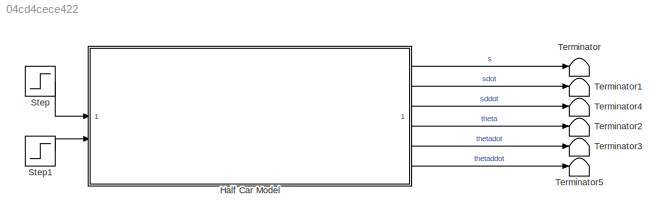
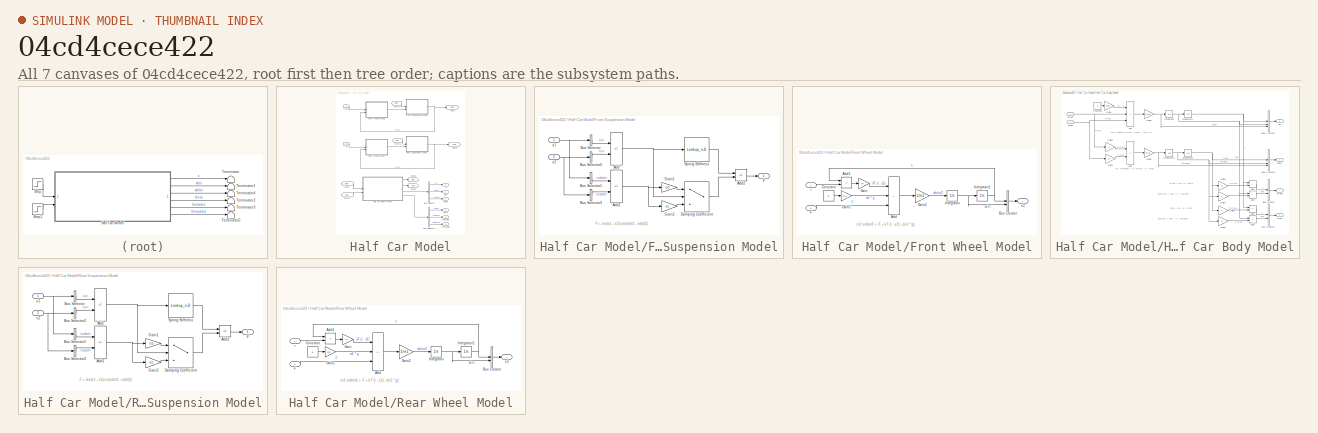
[diagram: thumbnail index - all 7 canvases of the model, root first then tree order]
MODEL slx_04cd4cece422
KIND model
CONFIG AbsTol = auto
CONFIG EnableMultiTasking = off
CONFIG FixedStep = auto
CONFIG MaxStep = auto
CONFIG MinStep = auto
CONFIG RelTol = 1e-3
CONFIG SampleTimeConstraint = Unconstrained
CONFIG SolverName = VariableStepAuto
CONFIG StartTime = 0.0
CONFIG StopTime = 20
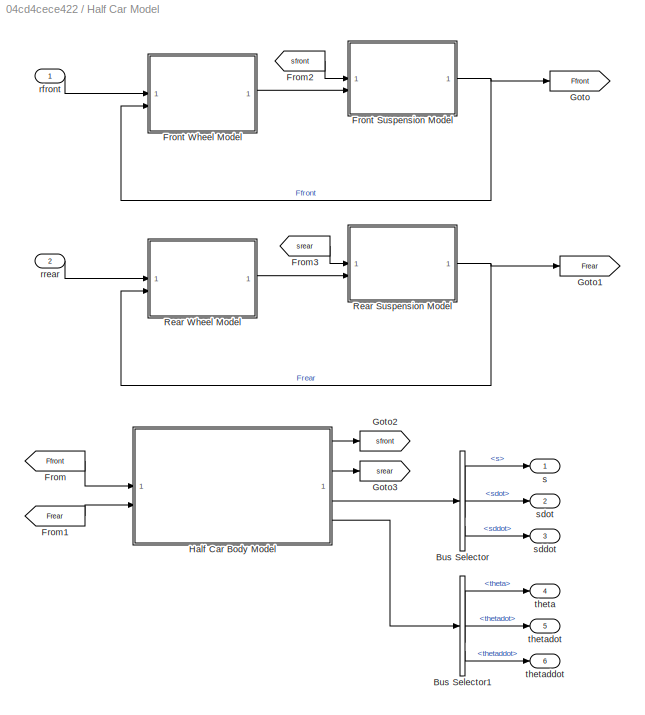
BLOCK [SubSystem] Half Car Model
BLOCK [BusSelector] Half Car Model/Bus Selector
  OutputSignals = s,sdot,sddot
BLOCK [BusSelector] Half Car Model/Bus Selector1
  OutputSignals = theta,thetadot,thetaddot
BLOCK [From] Half Car Model/From
  GotoTag = Ffront
BLOCK [From] Half Car Model/From1
  GotoTag = Frear
BLOCK [From] Half Car Model/From2
  GotoTag = sfront
BLOCK [From] Half Car Model/From3
  GotoTag = srear
BLOCK [SubSystem] Half Car Model/Front Suspension Model
  AttributesFormatString = ks = %<ks>\nk2 = %<k2>\nx0 = %<x0>\nce = %<ce>\ncc = %<cc>
BLOCK [Sum] Half Car Model/Front Suspension Model/Add
  IconShape = rectangular
  Inputs = +-
BLOCK [Sum] Half Car Model/Front Suspension Model/Add1
  IconShape = rectangular
  Inputs = +-
BLOCK [Sum] Half Car Model/Front Suspension Model/Add2
  IconShape = rectangular
  Inputs = --
BLOCK [BusSelector] Half Car Model/Front Suspension Model/Bus Selector
  OutputSignals = s
BLOCK [BusSelector] Half Car Model/Front Suspension Model/Bus Selector1
  OutputSignals = sdot
BLOCK [BusSelector] Half Car Model/Front Suspension Model/Bus Selector2
  OutputSignals = s
BLOCK [BusSelector] Half Car Model/Front Suspension Model/Bus Selector3
  OutputSignals = sdot
BLOCK [Switch] Half Car Model/Front Suspension Model/Damping Coefficient
  Criteria = u2 > Threshold
  InputSameDT = off
  SaturateOnIntegerOverflow = off
BLOCK [Outport] Half Car Model/Front Suspension Model/F
BLOCK [Gain] Half Car Model/Front Suspension Model/Gain1
  Gain = ce
BLOCK [Gain] Half Car Model/Front Suspension Model/Gain2
  Gain = cc
BLOCK [Lookup_n-D] Half Car Model/Front Suspension Model/Spring Stiffness
  BreakpointsForDimension1 = [-2*x0, -x0, x0, 2*x0]
  InputPortMap = u0
  InternalRulePriority = Speed
  NumberOfTableDimensions = 1
  RndMeth = Simplest
  Table = [-(ks+k2)*x0, -ks*x0, ks*x0, (ks+k2)*x0]
BLOCK [Inport] Half Car Model/Front Suspension Model/s1
BLOCK [Inport] Half Car Model/Front Suspension Model/s2
  Port = 2
BLOCK [SubSystem] Half Car Model/Front Wheel Model
  AttributesFormatString = g = %<g>\nkT = %<kT>\nm2 = %<m2>
BLOCK [Sum] Half Car Model/Front Wheel Model/Add
  IconShape = rectangular
  Inputs = +--
BLOCK [Sum] Half Car Model/Front Wheel Model/Add1
  IconShape = rectangular
  Inputs = -+
BLOCK [BusCreator] Half Car Model/Front Wheel Model/Bus Creator
  DisplayOption = bar
  InheritFromInputs = on
  Inputs = 2
BLOCK [Constant] Half Car Model/Front Wheel Model/Constant
  Value = g
BLOCK [Inport] Half Car Model/Front Wheel Model/F
  Port = 2
BLOCK [Gain] Half Car Model/Front Wheel Model/Gain
  Gain = kT
BLOCK [Gain] Half Car Model/Front Wheel Model/Gain1
  Gain = m2
BLOCK [Gain] Half Car Model/Front Wheel Model/Gain2
  Gain = 1/m2
BLOCK [Integrator] Half Car Model/Front Wheel Model/Integrator
BLOCK [Integrator] Half Car Model/Front Wheel Model/Integrator1
BLOCK [Inport] Half Car Model/Front Wheel Model/r
BLOCK [Outport] Half Car Model/Front Wheel Model/s2
BLOCK [Goto] Half Car Model/Goto
  GotoTag = Ffront
BLOCK [Goto] Half Car Model/Goto1
  GotoTag = Frear
BLOCK [Goto] Half Car Model/Goto2
  GotoTag = sfront
BLOCK [Goto] Half Car Model/Goto3
  GotoTag = srear
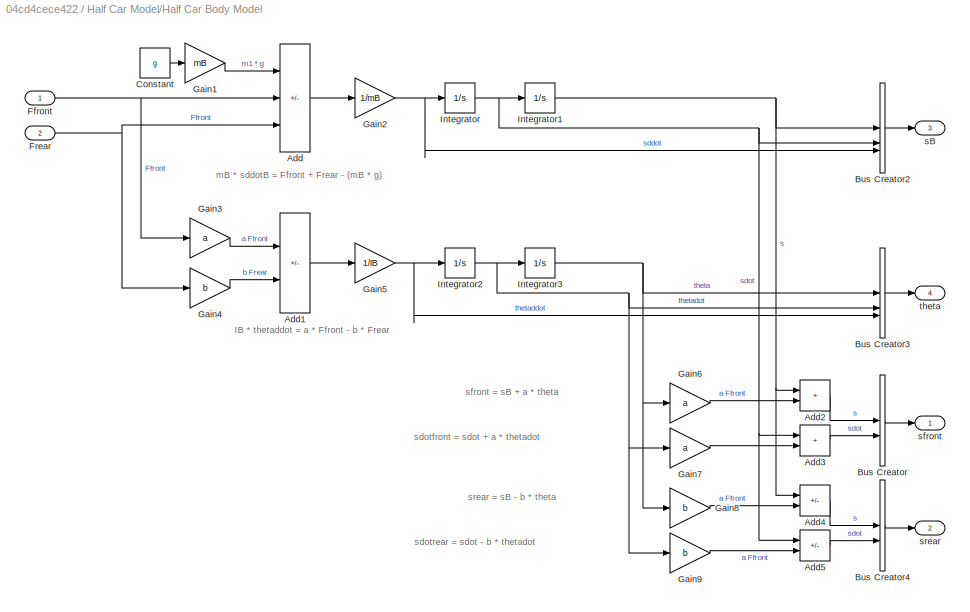
BLOCK [SubSystem] Half Car Model/Half Car Body Model
  AttributesFormatString = mB = %<mB>\nIB = %<IB>\ng = %<g>\na = %<a>\nb = %<b>
BLOCK [Sum] Half Car Model/Half Car Body Model/Add
  IconShape = rectangular
  Inputs = -++
BLOCK [Sum] Half Car Model/Half Car Body Model/Add1
  IconShape = rectangular
  Inputs = +-
BLOCK [Sum] Half Car Model/Half Car Body Model/Add2
  IconShape = rectangular
BLOCK [Sum] Half Car Model/Half Car Body Model/Add3
  IconShape = rectangular
BLOCK [Sum] Half Car Model/Half Car Body Model/Add4
  IconShape = rectangular
  Inputs = +-
BLOCK [Sum] Half Car Model/Half Car Body Model/Add5
  IconShape = rectangular
  Inputs = +-
BLOCK [BusCreator] Half Car Model/Half Car Body Model/Bus Creator
  DisplayOption = bar
  InheritFromInputs = on
  Inputs = 2
BLOCK [BusCreator] Half Car Model/Half Car Body Model/Bus Creator2
  DisplayOption = bar
  InheritFromInputs = on
  Inputs = 3
BLOCK [BusCreator] Half Car Model/Half Car Body Model/Bus Creator3
  DisplayOption = bar
  InheritFromInputs = on
  Inputs = 3
BLOCK [BusCreator] Half Car Model/Half Car Body Model/Bus Creator4
  DisplayOption = bar
  InheritFromInputs = on
  Inputs = 2
BLOCK [Constant] Half Car Model/Half Car Body Model/Constant
  Value = g
BLOCK [Inport] Half Car Model/Half Car Body Model/Ffront
BLOCK [Inport] Half Car Model/Half Car Body Model/Frear
  Port = 2
BLOCK [Gain] Half Car Model/Half Car Body Model/Gain1
  Gain = mB
BLOCK [Gain] Half Car Model/Half Car Body Model/Gain2
  Gain = 1/mB
BLOCK [Gain] Half Car Model/Half Car Body Model/Gain3
  Gain = a
BLOCK [Gain] Half Car Model/Half Car Body Model/Gain4
  Gain = b
BLOCK [Gain] Half Car Model/Half Car Body Model/Gain5
  Gain = 1/IB
BLOCK [Gain] Half Car Model/Half Car Body Model/Gain6
  Gain = a
BLOCK [Gain] Half Car Model/Half Car Body Model/Gain7
  Gain = a
BLOCK [Gain] Half Car Model/Half Car Body Model/Gain8
  Gain = b
BLOCK [Gain] Half Car Model/Half Car Body Model/Gain9
  Gain = b
BLOCK [Integrator] Half Car Model/Half Car Body Model/Integrator
BLOCK [Integrator] Half Car Model/Half Car Body Model/Integrator1
BLOCK [Integrator] Half Car Model/Half Car Body Model/Integrator2
BLOCK [Integrator] Half Car Model/Half Car Body Model/Integrator3
BLOCK [Outport] Half Car Model/Half Car Body Model/sB
  Port = 3
BLOCK [Outport] Half Car Model/Half Car Body Model/sfront
BLOCK [Outport] Half Car Model/Half Car Body Model/srear
  Port = 2
BLOCK [Outport] Half Car Model/Half Car Body Model/theta
  Port = 4
BLOCK [SubSystem] Half Car Model/Rear Suspension Model
  AttributesFormatString = ks = %<ks>\nk2 = %<k2>\nx0 = %<x0>\nce = %<ce>\ncc = %<cc>
BLOCK [Sum] Half Car Model/Rear Suspension Model/Add
  IconShape = rectangular
  Inputs = +-
BLOCK [Sum] Half Car Model/Rear Suspension Model/Add1
  IconShape = rectangular
  Inputs = +-
BLOCK [Sum] Half Car Model/Rear Suspension Model/Add2
  IconShape = rectangular
  Inputs = --
BLOCK [BusSelector] Half Car Model/Rear Suspension Model/Bus Selector
  OutputSignals = s
BLOCK [BusSelector] Half Car Model/Rear Suspension Model/Bus Selector1
  OutputSignals = sdot
BLOCK [BusSelector] Half Car Model/Rear Suspension Model/Bus Selector2
  OutputSignals = s
BLOCK [BusSelector] Half Car Model/Rear Suspension Model/Bus Selector3
  OutputSignals = sdot
BLOCK [Switch] Half Car Model/Rear Suspension Model/Damping Coefficient
  Criteria = u2 > Threshold
  InputSameDT = off
  SaturateOnIntegerOverflow = off
BLOCK [Outport] Half Car Model/Rear Suspension Model/F
BLOCK [Gain] Half Car Model/Rear Suspension Model/Gain1
  Gain = ce
BLOCK [Gain] Half Car Model/Rear Suspension Model/Gain2
  Gain = cc
BLOCK [Lookup_n-D] Half Car Model/Rear Suspension Model/Spring Stiffness
  BreakpointsForDimension1 = [-2*x0, -x0, x0, 2*x0]
  InputPortMap = u0
  InternalRulePriority = Speed
  NumberOfTableDimensions = 1
  RndMeth = Simplest
  Table = [-(ks+k2)*x0, -ks*x0, ks*x0, (ks+k2)*x0]
BLOCK [Inport] Half Car Model/Rear Suspension Model/s1
BLOCK [Inport] Half Car Model/Rear Suspension Model/s2
  Port = 2
BLOCK [SubSystem] Half Car Model/Rear Wheel Model
  AttributesFormatString = g = %<g>\nkT = %<kT>\nm2 = %<m2>
BLOCK [Sum] Half Car Model/Rear Wheel Model/Add
  IconShape = rectangular
  Inputs = +--
BLOCK [Sum] Half Car Model/Rear Wheel Model/Add1
  IconShape = rectangular
  Inputs = -+
BLOCK [BusCreator] Half Car Model/Rear Wheel Model/Bus Creator
  DisplayOption = bar
  InheritFromInputs = on
  Inputs = 2
BLOCK [Constant] Half Car Model/Rear Wheel Model/Constant
  Value = g
BLOCK [Inport] Half Car Model/Rear Wheel Model/F
  Port = 2
BLOCK [Gain] Half Car Model/Rear Wheel Model/Gain
  Gain = kT
BLOCK [Gain] Half Car Model/Rear Wheel Model/Gain1
  Gain = m2
BLOCK [Gain] Half Car Model/Rear Wheel Model/Gain2
  Gain = 1/m2
BLOCK [Integrator] Half Car Model/Rear Wheel Model/Integrator
BLOCK [Integrator] Half Car Model/Rear Wheel Model/Integrator1
BLOCK [Inport] Half Car Model/Rear Wheel Model/r
BLOCK [Outport] Half Car Model/Rear Wheel Model/s2
BLOCK [Inport] Half Car Model/rfront
BLOCK [Inport] Half Car Model/rrear
  Port = 2
BLOCK [Outport] Half Car Model/s
BLOCK [Outport] Half Car Model/sddot
  Port = 3
BLOCK [Outport] Half Car Model/sdot
  Port = 2
BLOCK [Outport] Half Car Model/theta
  Port = 4
BLOCK [Outport] Half Car Model/thetaddot
  Port = 6
BLOCK [Outport] Half Car Model/thetadot
  Port = 5
BLOCK [Step] Step
  After = 0.05
  SampleTime = 0
  Time = 10
BLOCK [Step] Step1
  After = 0.05
  SampleTime = 0
  Time = 15
BLOCK [Terminator] Terminator
BLOCK [Terminator] Terminator1
BLOCK [Terminator] Terminator2
BLOCK [Terminator] Terminator3
BLOCK [Terminator] Terminator4
BLOCK [Terminator] Terminator5
ANNOTATION Half Car Model/Front Suspension Model: F = -ks(s1 - s2)-cs(sdot1 - sdot2)
ANNOTATION Half Car Model/Front Wheel Model: m2 sddot2 = -F + kT (r - s2) - (m2 * g)
ANNOTATION Half Car Model/Half Car Body Model: IB * thetaddot = a * Ffront - b * Frear
ANNOTATION Half Car Model/Half Car Body Model: mB * sddotB = Ffront + Frear - (mB * g)
ANNOTATION Half Car Model/Half Car Body Model: sdotfront = sdot + a * thetadot
ANNOTATION Half Car Model/Half Car Body Model: sdotrear = sdot - b * thetadot
ANNOTATION Half Car Model/Half Car Body Model: sfront = sB + a * theta
ANNOTATION Half Car Model/Half Car Body Model: srear = sB - b * theta
ANNOTATION Half Car Model/Rear Suspension Model: F = -ks(s1 - s2)-cs(sdot1 - sdot2)
ANNOTATION Half Car Model/Rear Wheel Model: m2 sddot2 = -F + kT (r - s2) - (m2 * g)
LINE Half Car Model/Bus Selector1:1 -> Half Car Model/theta:1
LINE Half Car Model/Bus Selector1:2 -> Half Car Model/thetadot:1
LINE Half Car Model/Bus Selector1:3 -> Half Car Model/thetaddot:1
LINE Half Car Model/Bus Selector:1 -> Half Car Model/s:1
LINE Half Car Model/Bus Selector:2 -> Half Car Model/sdot:1
LINE Half Car Model/Bus Selector:3 -> Half Car Model/sddot:1
LINE Half Car Model/From1:1 -> Half Car Model/Half Car Body Model:2
LINE Half Car Model/From2:1 -> Half Car Model/Front Suspension Model:1
LINE Half Car Model/From3:1 -> Half Car Model/Rear Suspension Model:1
LINE Half Car Model/From:1 -> Half Car Model/Half Car Body Model:1
NET Half Car Model/Front Suspension Model/Add1:1 -> Half Car Model/Front Suspension Model/Gain1:1, Half Car Model/Front Suspension Model/Gain2:1
LINE Half Car Model/Front Suspension Model/Add2:1 -> Half Car Model/Front Suspension Model/F:1
NET Half Car Model/Front Suspension Model/Add:1 -> Half Car Model/Front Suspension Model/Damping Coefficient:2, Half Car Model/Front Suspension Model/Spring Stiffness:1
LINE Half Car Model/Front Suspension Model/Bus Selector1:1 -> Half Car Model/Front Suspension Model/Add1:1
LINE Half Car Model/Front Suspension Model/Bus Selector2:1 -> Half Car Model/Front Suspension Model/Add:2
LINE Half Car Model/Front Suspension Model/Bus Selector3:1 -> Half Car Model/Front Suspension Model/Add1:2
LINE Half Car Model/Front Suspension Model/Bus Selector:1 -> Half Car Model/Front Suspension Model/Add:1
LINE Half Car Model/Front Suspension Model/Damping Coefficient:1 -> Half Car Model/Front Suspension Model/Add2:2
LINE Half Car Model/Front Suspension Model/Gain1:1 -> Half Car Model/Front Suspension Model/Damping Coefficient:1
LINE Half Car Model/Front Suspension Model/Gain2:1 -> Half Car Model/Front Suspension Model/Damping Coefficient:3
LINE Half Car Model/Front Suspension Model/Spring Stiffness:1 -> Half Car Model/Front Suspension Model/Add2:1
NET Half Car Model/Front Suspension Model/s1:1 -> Half Car Model/Front Suspension Model/Bus Selector1:1, Half Car Model/Front Suspension Model/Bus Selector:1
NET Half Car Model/Front Suspension Model/s2:1 -> Half Car Model/Front Suspension Model/Bus Selector2:1, Half Car Model/Front Suspension Model/Bus Selector3:1
NET Half Car Model/Front Suspension Model:1 -> Half Car Model/Front Wheel Model:2, Half Car Model/Goto:1
LINE Half Car Model/Front Wheel Model/Add1:1 -> Half Car Model/Front Wheel Model/Gain:1
LINE Half Car Model/Front Wheel Model/Add:1 -> Half Car Model/Front Wheel Model/Gain2:1
LINE Half Car Model/Front Wheel Model/Bus Creator:1 -> Half Car Model/Front Wheel Model/s2:1
LINE Half Car Model/Front Wheel Model/Constant:1 -> Half Car Model/Front Wheel Model/Gain1:1
LINE Half Car Model/Front Wheel Model/F:1 -> Half Car Model/Front Wheel Model/Add:3
LINE Half Car Model/Front Wheel Model/Gain1:1 -> Half Car Model/Front Wheel Model/Add:2
LINE Half Car Model/Front Wheel Model/Gain2:1 -> Half Car Model/Front Wheel Model/Integrator:1
LINE Half Car Model/Front Wheel Model/Gain:1 -> Half Car Model/Front Wheel Model/Add:1
NET Half Car Model/Front Wheel Model/Integrator1:1 -> Half Car Model/Front Wheel Model/Add1:1, Half Car Model/Front Wheel Model/Bus Creator:1
NET Half Car Model/Front Wheel Model/Integrator:1 -> Half Car Model/Front Wheel Model/Bus Creator:2, Half Car Model/Front Wheel Model/Integrator1:1
LINE Half Car Model/Front Wheel Model/r:1 -> Half Car Model/Front Wheel Model/Add1:2
LINE Half Car Model/Front Wheel Model:1 -> Half Car Model/Front Suspension Model:2
LINE Half Car Model/Half Car Body Model/Add1:1 -> Half Car Model/Half Car Body Model/Gain5:1
LINE Half Car Model/Half Car Body Model/Add2:1 -> Half Car Model/Half Car Body Model/Bus Creator:1
LINE Half Car Model/Half Car Body Model/Add3:1 -> Half Car Model/Half Car Body Model/Bus Creator:2
LINE Half Car Model/Half Car Body Model/Add4:1 -> Half Car Model/Half Car Body Model/Bus Creator4:1
LINE Half Car Model/Half Car Body Model/Add5:1 -> Half Car Model/Half Car Body Model/Bus Creator4:2
LINE Half Car Model/Half Car Body Model/Add:1 -> Half Car Model/Half Car Body Model/Gain2:1
LINE Half Car Model/Half Car Body Model/Bus Creator2:1 -> Half Car Model/Half Car Body Model/sB:1
LINE Half Car Model/Half Car Body Model/Bus Creator3:1 -> Half Car Model/Half Car Body Model/theta:1
LINE Half Car Model/Half Car Body Model/Bus Creator4:1 -> Half Car Model/Half Car Body Model/srear:1
LINE Half Car Model/Half Car Body Model/Bus Creator:1 -> Half Car Model/Half Car Body Model/sfront:1
LINE Half Car Model/Half Car Body Model/Constant:1 -> Half Car Model/Half Car Body Model/Gain1:1
NET Half Car Model/Half Car Body Model/Ffront:1 -> Half Car Model/Half Car Body Model/Add:2, Half Car Model/Half Car Body Model/Gain3:1
NET Half Car Model/Half Car Body Model/Frear:1 -> Half Car Model/Half Car Body Model/Add:3, Half Car Model/Half Car Body Model/Gain4:1
LINE Half Car Model/Half Car Body Model/Gain1:1 -> Half Car Model/Half Car Body Model/Add:1
NET Half Car Model/Half Car Body Model/Gain2:1 -> Half Car Model/Half Car Body Model/Bus Creator2:3, Half Car Model/Half Car Body Model/Integrator:1
LINE Half Car Model/Half Car Body Model/Gain3:1 -> Half Car Model/Half Car Body Model/Add1:1
LINE Half Car Model/Half Car Body Model/Gain4:1 -> Half Car Model/Half Car Body Model/Add1:2
NET Half Car Model/Half Car Body Model/Gain5:1 -> Half Car Model/Half Car Body Model/Bus Creator3:3, Half Car Model/Half Car Body Model/Integrator2:1
LINE Half Car Model/Half Car Body Model/Gain6:1 -> Half Car Model/Half Car Body Model/Add2:2
LINE Half Car Model/Half Car Body Model/Gain7:1 -> Half Car Model/Half Car Body Model/Add3:2
LINE Half Car Model/Half Car Body Model/Gain8:1 -> Half Car Model/Half Car Body Model/Add4:2
LINE Half Car Model/Half Car Body Model/Gain9:1 -> Half Car Model/Half Car Body Model/Add5:2
NET Half Car Model/Half Car Body Model/Integrator1:1 -> Half Car Model/Half Car Body Model/Add2:1, Half Car Model/Half Car Body Model/Add4:1, Half Car Model/Half Car Body Model/Bus Creator2:1
NET Half Car Model/Half Car Body Model/Integrator2:1 -> Half Car Model/Half Car Body Model/Bus Creator3:2, Half Car Model/Half Car Body Model/Gain7:1, Half Car Model/Half Car Body Model/Gain9:1, Half Car Model/Half Car Body Model/Integrator3:1
NET Half Car Model/Half Car Body Model/Integrator3:1 -> Half Car Model/Half Car Body Model/Bus Creator3:1, Half Car Model/Half Car Body Model/Gain6:1, Half Car Model/Half Car Body Model/Gain8:1
NET Half Car Model/Half Car Body Model/Integrator:1 -> Half Car Model/Half Car Body Model/Add3:1, Half Car Model/Half Car Body Model/Add5:1, Half Car Model/Half Car Body Model/Bus Creator2:2, Half Car Model/Half Car Body Model/Integrator1:1
LINE Half Car Model/Half Car Body Model:1 -> Half Car Model/Goto2:1
LINE Half Car Model/Half Car Body Model:2 -> Half Car Model/Goto3:1
LINE Half Car Model/Half Car Body Model:3 -> Half Car Model/Bus Selector:1
LINE Half Car Model/Half Car Body Model:4 -> Half Car Model/Bus Selector1:1
NET Half Car Model/Rear Suspension Model/Add1:1 -> Half Car Model/Rear Suspension Model/Gain1:1, Half Car Model/Rear Suspension Model/Gain2:1
LINE Half Car Model/Rear Suspension Model/Add2:1 -> Half Car Model/Rear Suspension Model/F:1
NET Half Car Model/Rear Suspension Model/Add:1 -> Half Car Model/Rear Suspension Model/Damping Coefficient:2, Half Car Model/Rear Suspension Model/Spring Stiffness:1
LINE Half Car Model/Rear Suspension Model/Bus Selector1:1 -> Half Car Model/Rear Suspension Model/Add1:1
LINE Half Car Model/Rear Suspension Model/Bus Selector2:1 -> Half Car Model/Rear Suspension Model/Add:2
LINE Half Car Model/Rear Suspension Model/Bus Selector3:1 -> Half Car Model/Rear Suspension Model/Add1:2
LINE Half Car Model/Rear Suspension Model/Bus Selector:1 -> Half Car Model/Rear Suspension Model/Add:1
LINE Half Car Model/Rear Suspension Model/Damping Coefficient:1 -> Half Car Model/Rear Suspension Model/Add2:2
LINE Half Car Model/Rear Suspension Model/Gain1:1 -> Half Car Model/Rear Suspension Model/Damping Coefficient:1
LINE Half Car Model/Rear Suspension Model/Gain2:1 -> Half Car Model/Rear Suspension Model/Damping Coefficient:3
LINE Half Car Model/Rear Suspension Model/Spring Stiffness:1 -> Half Car Model/Rear Suspension Model/Add2:1
NET Half Car Model/Rear Suspension Model/s1:1 -> Half Car Model/Rear Suspension Model/Bus Selector1:1, Half Car Model/Rear Suspension Model/Bus Selector:1
NET Half Car Model/Rear Suspension Model/s2:1 -> Half Car Model/Rear Suspension Model/Bus Selector2:1, Half Car Model/Rear Suspension Model/Bus Selector3:1
NET Half Car Model/Rear Suspension Model:1 -> Half Car Model/Goto1:1, Half Car Model/Rear Wheel Model:2
LINE Half Car Model/Rear Wheel Model/Add1:1 -> Half Car Model/Rear Wheel Model/Gain:1
LINE Half Car Model/Rear Wheel Model/Add:1 -> Half Car Model/Rear Wheel Model/Gain2:1
LINE Half Car Model/Rear Wheel Model/Bus Creator:1 -> Half Car Model/Rear Wheel Model/s2:1
LINE Half Car Model/Rear Wheel Model/Constant:1 -> Half Car Model/Rear Wheel Model/Gain1:1
LINE Half Car Model/Rear Wheel Model/F:1 -> Half Car Model/Rear Wheel Model/Add:3
LINE Half Car Model/Rear Wheel Model/Gain1:1 -> Half Car Model/Rear Wheel Model/Add:2
LINE Half Car Model/Rear Wheel Model/Gain2:1 -> Half Car Model/Rear Wheel Model/Integrator:1
LINE Half Car Model/Rear Wheel Model/Gain:1 -> Half Car Model/Rear Wheel Model/Add:1
NET Half Car Model/Rear Wheel Model/Integrator1:1 -> Half Car Model/Rear Wheel Model/Add1:1, Half Car Model/Rear Wheel Model/Bus Creator:1
NET Half Car Model/Rear Wheel Model/Integrator:1 -> Half Car Model/Rear Wheel Model/Bus Creator:2, Half Car Model/Rear Wheel Model/Integrator1:1
LINE Half Car Model/Rear Wheel Model/r:1 -> Half Car Model/Rear Wheel Model/Add1:2
LINE Half Car Model/Rear Wheel Model:1 -> Half Car Model/Rear Suspension Model:2
LINE Half Car Model/rfront:1 -> Half Car Model/Front Wheel Model:1
LINE Half Car Model/rrear:1 -> Half Car Model/Rear Wheel Model:1
LINE Half Car Model:1 -> Terminator:1
LINE Half Car Model:2 -> Terminator1:1
LINE Half Car Model:3 -> Terminator4:1
LINE Half Car Model:4 -> Terminator2:1
LINE Half Car Model:5 -> Terminator3:1
LINE Half Car Model:6 -> Terminator5:1
LINE Step1:1 -> Half Car Model:2
LINE Step:1 -> Half Car Model:1
note: NET lines group one-source signal fan-out (src -> all destinations, sorted); 1:1 wires keep LINE
